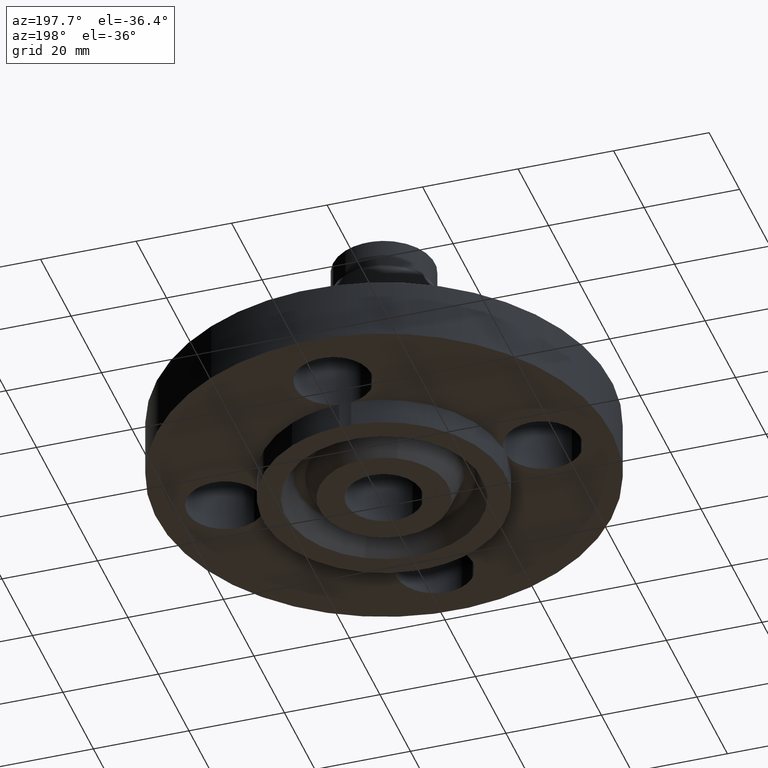
[diagram: clean part render]
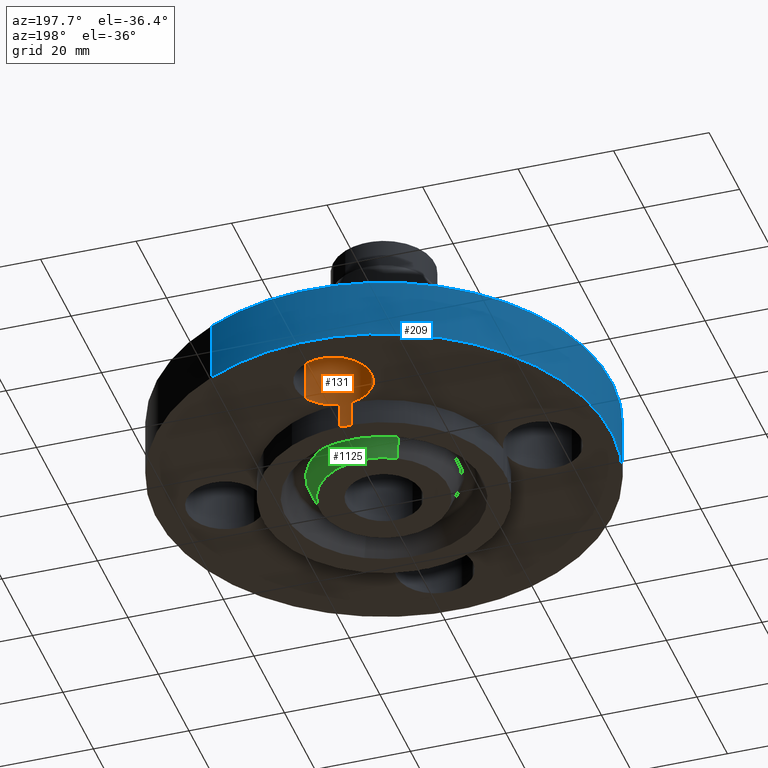
[diagram: same view with three faces highlighted in distinct colors, each labeled with its STEP entity id]
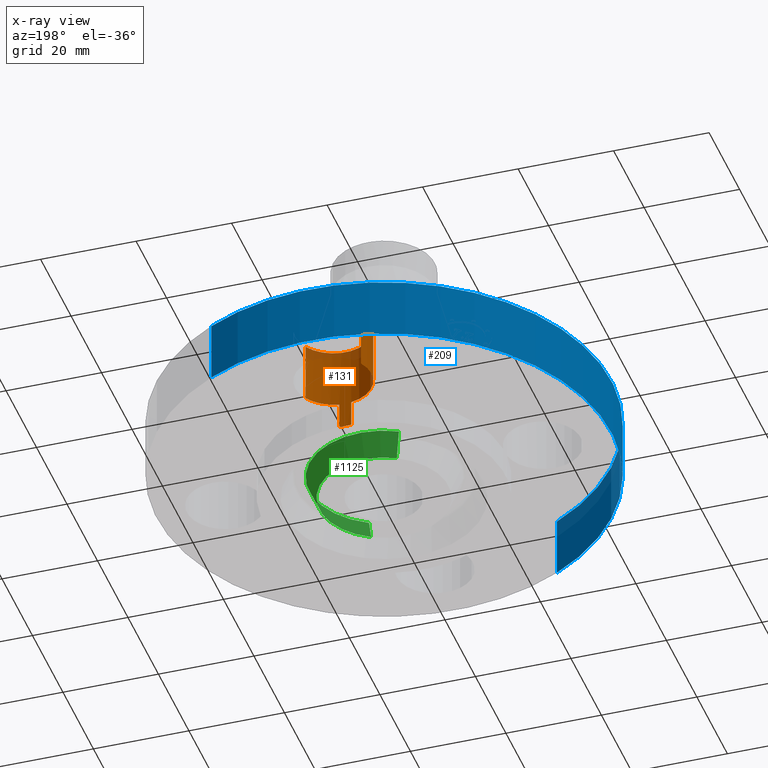
[diagram: x-ray of the same camera — body ghosted, the three highlighted faces saturated]
A machine part, auxiliary view with three faces highlighted in distinct colors.
The next image is the same camera in x-ray (body ghosted, the three faces saturated) — at least one of them is partly hidden behind the body in this view.
Their STEP definitions:

[orange] entity #131 — the highlighted cylindrical surface (partial cylindrical patch) has radius 8.001 mm, axis along (0, -0, -1).
#38=AXIS2_PLACEMENT_3D('Cylinder Axis2P3D',#35,#36,#37) ;
#85=AXIS2_PLACEMENT_3D('Circle Axis2P3D',#83,#84,$) ;
#99=AXIS2_PLACEMENT_3D('Circle Axis2P3D',#97,#98,$) ;
#113=AXIS2_PLACEMENT_3D('Circle Axis2P3D',#111,#112,$) ;
#118=AXIS2_PLACEMENT_3D('Circle Axis2P3D',#116,#117,$) ;
#35=CARTESIAN_POINT('Axis2P3D Location',(0.,1.31000000001,0.496062992128)) ;
#40=CARTESIAN_POINT('Line Origine',(-0.276438506997,1.46101904467,0.140500000001)) ;
#44=CARTESIAN_POINT('Vertex',(-0.276438506997,1.46101904467,0.)) ;
#46=CARTESIAN_POINT('Vertex',(-0.276438506997,1.46101904467,0.500000000002)) ;
#53=CARTESIAN_POINT('Vertex',(0.276438506997,1.15898095534,0.)) ;
#56=CARTESIAN_POINT('Line Origine',(0.276438506997,1.15898095534,0.140500000001)) ;
#60=CARTESIAN_POINT('Vertex',(0.276438506997,1.15898095534,0.500000000002)) ;
#83=CARTESIAN_POINT('Axis2P3D Location',(0.,1.31000000001,0.)) ;
#87=CARTESIAN_POINT('Vertex',(0.0488269754871,0.998807251912,0.)) ;
#90=CARTESIAN_POINT('Line Origine',(0.0488269754871,0.998807251912,0.140500000001)) ;
#94=CARTESIAN_POINT('Vertex',(0.0488269754871,0.998807251912,-0.219000000001)) ;
#97=CARTESIAN_POINT('Axis2P3D Location',(0.,1.31000000001,-0.219000000001)) ;
#101=CARTESIAN_POINT('Vertex',(-0.0488269754871,0.998807251912,-0.219000000001)) ;
#104=CARTESIAN_POINT('Line Origine',(-0.0488269754871,0.998807251912,0.140500000001)) ;
#108=CARTESIAN_POINT('Vertex',(-0.0488269754871,0.998807251912,0.)) ;
#111=CARTESIAN_POINT('Axis2P3D Location',(0.,1.31000000001,0.)) ;
#116=CARTESIAN_POINT('Axis2P3D Location',(0.,1.31000000001,0.500000000002)) ;
#36=DIRECTION('Axis2P3D Direction',(0.,-0.,-0.0393700787402)) ;
#37=DIRECTION('Axis2P3D XDirection',(0.0345504945626,-0.0188750212049,0.)) ;
#41=DIRECTION('Vector Direction',(0.,0.,-0.0393700787402)) ;
#57=DIRECTION('Vector Direction',(0.,0.,-0.0393700787402)) ;
#84=DIRECTION('Axis2P3D Direction',(0.,-0.,-0.0393700787402)) ;
#91=DIRECTION('Vector Direction',(0.,0.,-0.0393700787402)) ;
#98=DIRECTION('Axis2P3D Direction',(0.,-0.,-0.0393700787402)) ;
#105=DIRECTION('Vector Direction',(0.,0.,-0.0393700787402)) ;
#112=DIRECTION('Axis2P3D Direction',(0.,-0.,-0.0393700787402)) ;
#117=DIRECTION('Axis2P3D Direction',(0.,-0.,-0.0393700787402)) ;
#42=VECTOR('Line Direction',#41,0.0393700787402) ;
#58=VECTOR('Line Direction',#57,0.0393700787402) ;
#92=VECTOR('Line Direction',#91,0.0393700787402) ;
#106=VECTOR('Line Direction',#105,0.0393700787402) ;
#122=ORIENTED_EDGE('',*,*,#62,.F.) ;
#123=ORIENTED_EDGE('',*,*,#89,.T.) ;
#124=ORIENTED_EDGE('',*,*,#96,.T.) ;
#125=ORIENTED_EDGE('',*,*,#103,.T.) ;
#126=ORIENTED_EDGE('',*,*,#110,.F.) ;
#127=ORIENTED_EDGE('',*,*,#115,.T.) ;
#128=ORIENTED_EDGE('',*,*,#48,.T.) ;
#129=ORIENTED_EDGE('',*,*,#120,.F.) ;
#131=ADVANCED_FACE('PartBody',(#130),#39,.F.) ;
#86=CIRCLE('generated circle',#85,0.315000000001) ;
#100=CIRCLE('generated circle',#99,0.315000000001) ;
#114=CIRCLE('generated circle',#113,0.315000000001) ;
#119=CIRCLE('generated circle',#118,0.315000000001) ;
#39=CYLINDRICAL_SURFACE('generated cylinder',#38,0.315000000001) ;
#48=EDGE_CURVE('',#45,#47,#43,.F.) ;
#62=EDGE_CURVE('',#54,#61,#59,.F.) ;
#89=EDGE_CURVE('',#54,#88,#86,.T.) ;
#96=EDGE_CURVE('',#88,#95,#93,.T.) ;
#103=EDGE_CURVE('',#95,#102,#100,.T.) ;
#110=EDGE_CURVE('',#109,#102,#107,.T.) ;
#115=EDGE_CURVE('',#109,#45,#114,.T.) ;
#120=EDGE_CURVE('',#61,#47,#119,.T.) ;
#121=EDGE_LOOP('',(#122,#123,#124,#125,#126,#127,#128,#129)) ;
#130=FACE_OUTER_BOUND('',#121,.T.) ;
#43=LINE('Line',#40,#42) ;
#59=LINE('Line',#56,#58) ;
#93=LINE('Line',#90,#92) ;
#107=LINE('Line',#104,#106) ;
#45=VERTEX_POINT('',#44) ;
#47=VERTEX_POINT('',#46) ;
#54=VERTEX_POINT('',#53) ;
#61=VERTEX_POINT('',#60) ;
#88=VERTEX_POINT('',#87) ;
#95=VERTEX_POINT('',#94) ;
#102=VERTEX_POINT('',#101) ;
#109=VERTEX_POINT('',#108) ;

[blue] entity #209 — the highlighted cylindrical surface (partial cylindrical patch) has radius 47.625 mm, axis along (0, 0, -1).
#173=AXIS2_PLACEMENT_3D('Cylinder Axis2P3D',#170,#171,#172) ;
#177=AXIS2_PLACEMENT_3D('Circle Axis2P3D',#175,#176,$) ;
#193=AXIS2_PLACEMENT_3D('Circle Axis2P3D',#191,#192,$) ;
#170=CARTESIAN_POINT('Axis2P3D Location',(0.,0.,0.890500000004)) ;
#175=CARTESIAN_POINT('Axis2P3D Location',(0.,0.,0.)) ;
#179=CARTESIAN_POINT('Vertex',(-0.898922884886,-1.64546730355,0.)) ;
#181=CARTESIAN_POINT('Vertex',(0.898922884886,1.64546730355,0.)) ;
#184=CARTESIAN_POINT('Line Origine',(-0.898922884886,-1.64546730355,0.250000000001)) ;
#188=CARTESIAN_POINT('Vertex',(-0.898922884886,-1.64546730355,0.500000000002)) ;
#191=CARTESIAN_POINT('Axis2P3D Location',(0.,0.,0.500000000002)) ;
#195=CARTESIAN_POINT('Vertex',(0.898922884886,1.64546730355,0.500000000002)) ;
#198=CARTESIAN_POINT('Line Origine',(0.898922884886,1.64546730355,0.250000000001)) ;
#171=DIRECTION('Axis2P3D Direction',(0.,0.,-0.0393700787402)) ;
#172=DIRECTION('Axis2P3D XDirection',(0.0188750212049,0.0345504945626,0.)) ;
#176=DIRECTION('Axis2P3D Direction',(0.,0.,-0.0393700787402)) ;
#185=DIRECTION('Vector Direction',(0.,0.,-0.0393700787402)) ;
#192=DIRECTION('Axis2P3D Direction',(0.,0.,-0.0393700787402)) ;
#199=DIRECTION('Vector Direction',(0.,0.,-0.0393700787402)) ;
#186=VECTOR('Line Direction',#185,0.0393700787402) ;
#200=VECTOR('Line Direction',#199,0.0393700787402) ;
#204=ORIENTED_EDGE('',*,*,#183,.F.) ;
#205=ORIENTED_EDGE('',*,*,#190,.T.) ;
#206=ORIENTED_EDGE('',*,*,#197,.T.) ;
#207=ORIENTED_EDGE('',*,*,#202,.F.) ;
#209=ADVANCED_FACE('PartBody',(#208),#174,.T.) ;
#178=CIRCLE('generated circle',#177,1.87500000001) ;
#194=CIRCLE('generated circle',#193,1.87500000001) ;
#174=CYLINDRICAL_SURFACE('generated cylinder',#173,1.87500000001) ;
#183=EDGE_CURVE('',#180,#182,#178,.T.) ;
#190=EDGE_CURVE('',#180,#189,#187,.F.) ;
#197=EDGE_CURVE('',#189,#196,#194,.T.) ;
#202=EDGE_CURVE('',#182,#196,#201,.F.) ;
#203=EDGE_LOOP('',(#204,#205,#206,#207)) ;
#208=FACE_OUTER_BOUND('',#203,.T.) ;
#187=LINE('Line',#184,#186) ;
#201=LINE('Line',#198,#200) ;
#180=VERTEX_POINT('',#179) ;
#182=VERTEX_POINT('',#181) ;
#189=VERTEX_POINT('',#188) ;
#196=VERTEX_POINT('',#195) ;

[green] entity #1125 — the highlighted conical surface has half-angle 23 deg.
#931=AXIS2_PLACEMENT_3D('Circle Axis2P3D',#929,#930,$) ;
#1075=AXIS2_PLACEMENT_3D('Circle Axis2P3D',#1073,#1074,$) ;
#1107=AXIS2_PLACEMENT_3D('Cone Axis2P3D',#1104,#1105,#1106) ;
#929=CARTESIAN_POINT('Axis2P3D Location',(1.39870617276E-016,-3.49676543189E-017,-0.219000000001)) ;
#933=CARTESIAN_POINT('Vertex',(-0.254814673769,0.466435131647,-0.219000000001)) ;
#935=CARTESIAN_POINT('Vertex',(0.254814673769,-0.466435131647,-0.219000000001)) ;
#1070=CARTESIAN_POINT('Vertex',(0.295538415029,-0.540979440004,-0.0188873350169)) ;
#1073=CARTESIAN_POINT('Axis2P3D Location',(0.,0.,-0.0188873350169)) ;
#1077=CARTESIAN_POINT('Vertex',(-0.295538415029,0.540979440004,-0.0188873350169)) ;
#1104=CARTESIAN_POINT('Axis2P3D Location',(0.,0.,-0.279000000001)) ;
#1109=CARTESIAN_POINT('Line Origine',(-0.275176544399,0.503707285825,-0.118943667509)) ;
#1114=CARTESIAN_POINT('Line Origine',(0.275176544399,-0.503707285825,-0.118943667509)) ;
#930=DIRECTION('Axis2P3D Direction',(0.,0.,-0.0393700787402)) ;
#1074=DIRECTION('Axis2P3D Direction',(0.,0.,0.0393700787402)) ;
#1105=DIRECTION('Axis2P3D Direction',(0.,0.,0.0393700787402)) ;
#1106=DIRECTION('Axis2P3D XDirection',(-0.0188750212049,0.0345504945626,0.)) ;
#1110=DIRECTION('Vector Direction',(-0.00737505833565,0.0134999537303,0.0362403485611)) ;
#1115=DIRECTION('Vector Direction',(0.00737505833565,-0.0134999537303,0.0362403485611)) ;
#1111=VECTOR('Line Direction',#1110,0.0393700787402) ;
#1116=VECTOR('Line Direction',#1115,0.0393700787402) ;
#1120=ORIENTED_EDGE('',*,*,#1113,.F.) ;
#1121=ORIENTED_EDGE('',*,*,#1079,.F.) ;
#1122=ORIENTED_EDGE('',*,*,#1118,.T.) ;
#1123=ORIENTED_EDGE('',*,*,#937,.F.) ;
#1125=ADVANCED_FACE('PartBody',(#1124),#1108,.T.) ;
#932=CIRCLE('generated circle',#931,0.531500000002) ;
#1076=CIRCLE('generated circle',#1075,0.616442786692) ;
#1108=CONICAL_SURFACE('Cone',#1107,0.506031511029,0.401425727959) ;
#937=EDGE_CURVE('',#934,#936,#932,.T.) ;
#1079=EDGE_CURVE('',#1071,#1078,#1076,.T.) ;
#1113=EDGE_CURVE('',#1078,#934,#1112,.F.) ;
#1118=EDGE_CURVE('',#1071,#936,#1117,.F.) ;
#1119=EDGE_LOOP('',(#1120,#1121,#1122,#1123)) ;
#1124=FACE_OUTER_BOUND('',#1119,.T.) ;
#1112=LINE('Line',#1109,#1111) ;
#1117=LINE('Line',#1114,#1116) ;
#934=VERTEX_POINT('',#933) ;
#936=VERTEX_POINT('',#935) ;
#1071=VERTEX_POINT('',#1070) ;
#1078=VERTEX_POINT('',#1077) ;